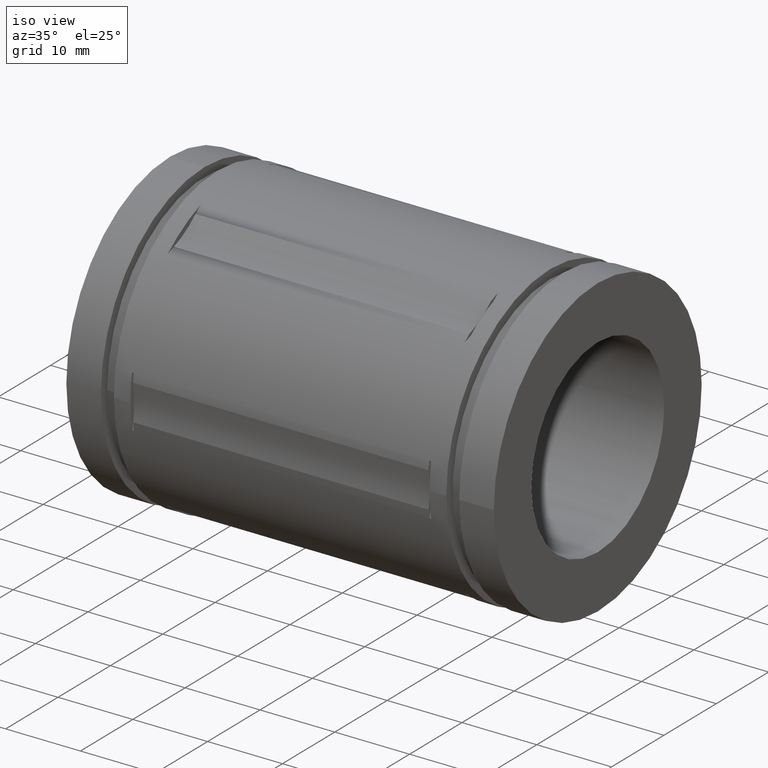
[diagram: clean part render]
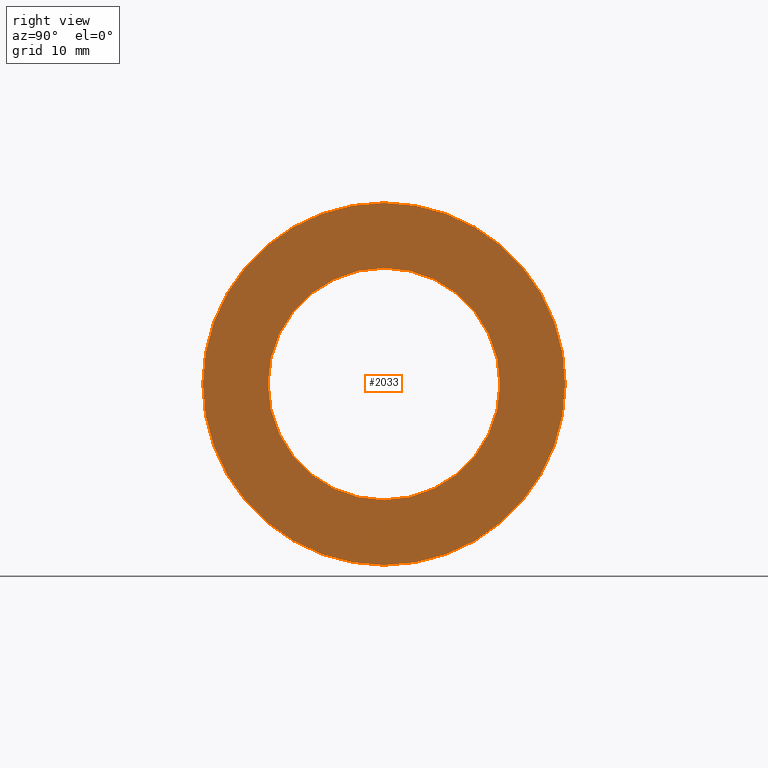
[diagram: tour spotlight — one face highlighted and labeled with its STEP entity id]
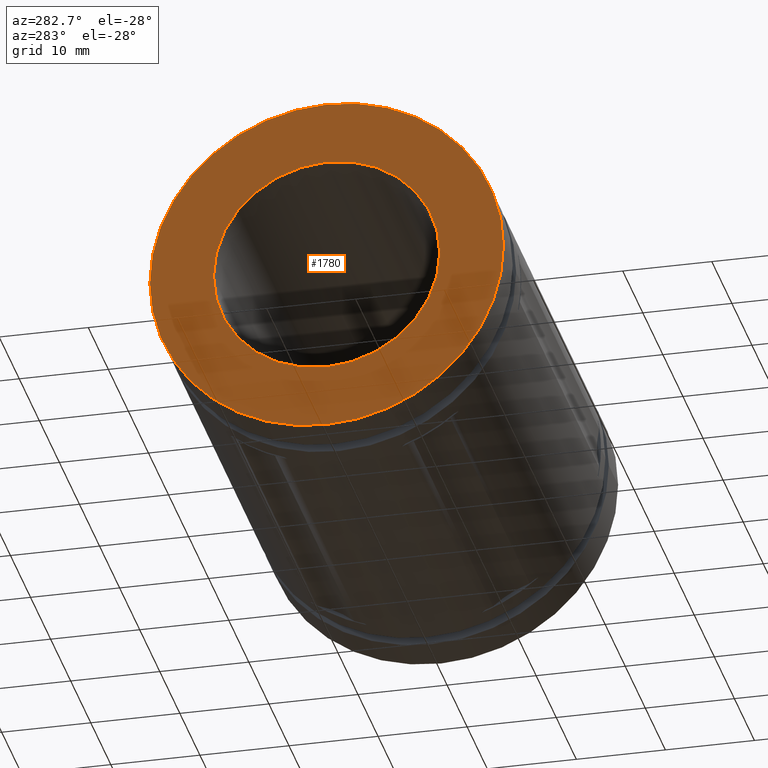
[diagram: tour spotlight — one face highlighted and labeled with its STEP entity id]
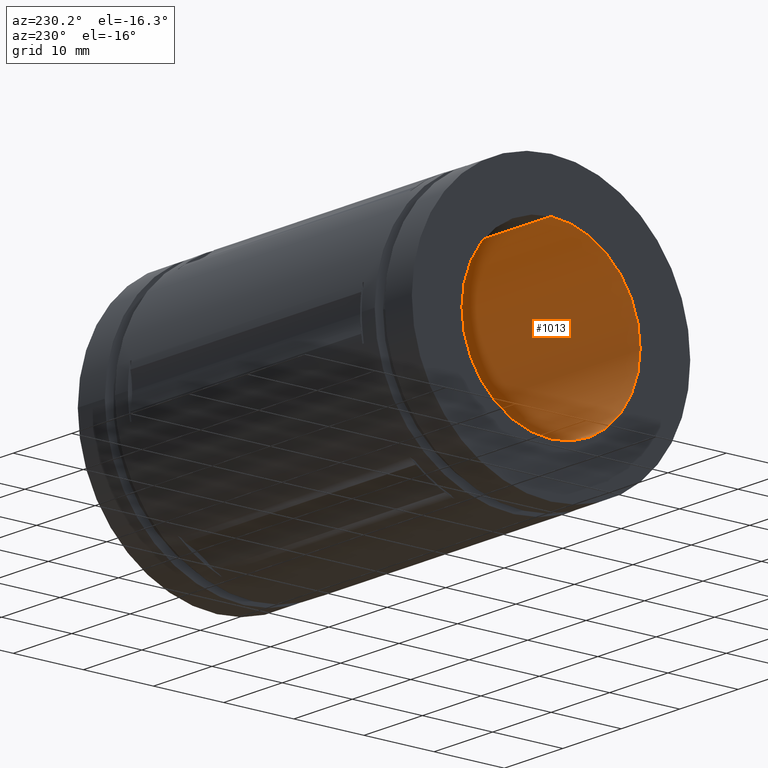
[diagram: tour spotlight — one face highlighted and labeled with its STEP entity id]
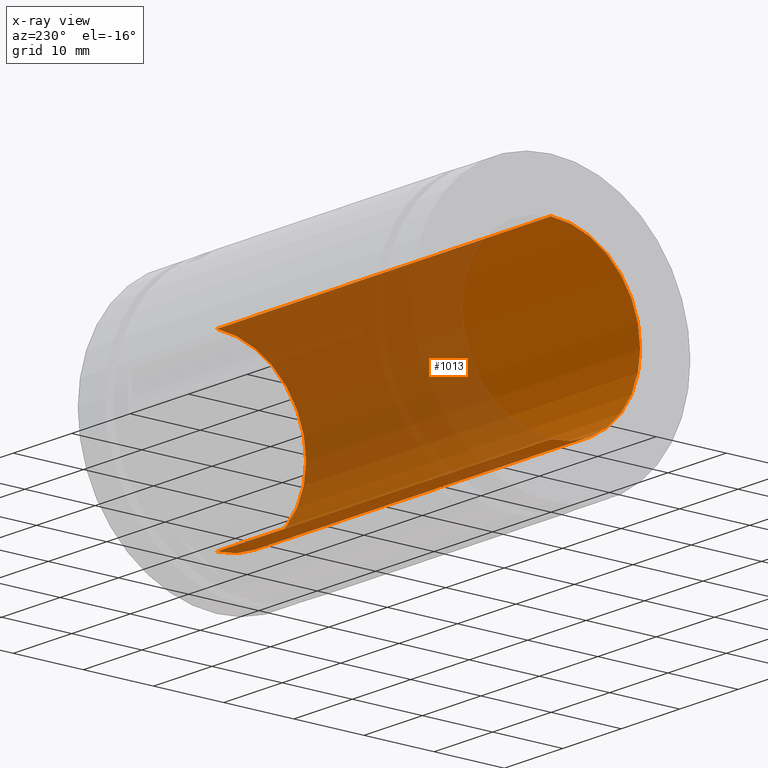
[diagram: x-ray of the same camera — body ghosted, this tour face saturated]
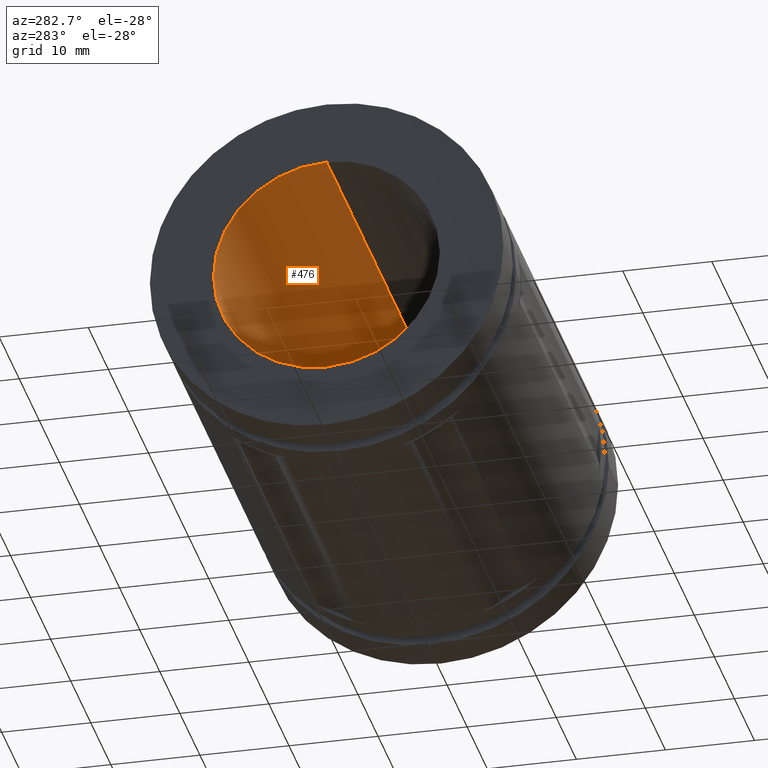
[diagram: tour spotlight — one face highlighted and labeled with its STEP entity id]
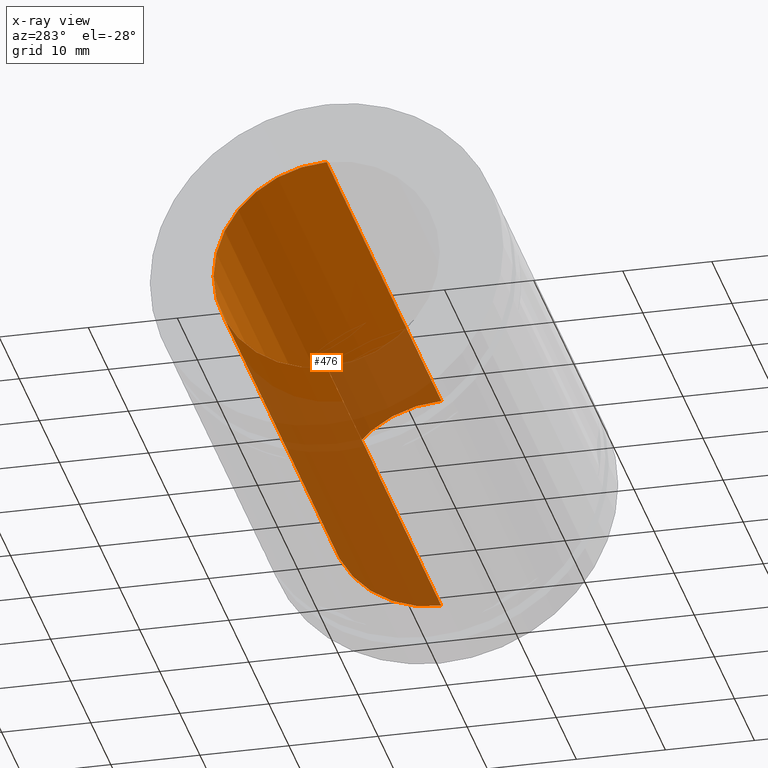
[diagram: x-ray of the same camera — body ghosted, this tour face saturated]
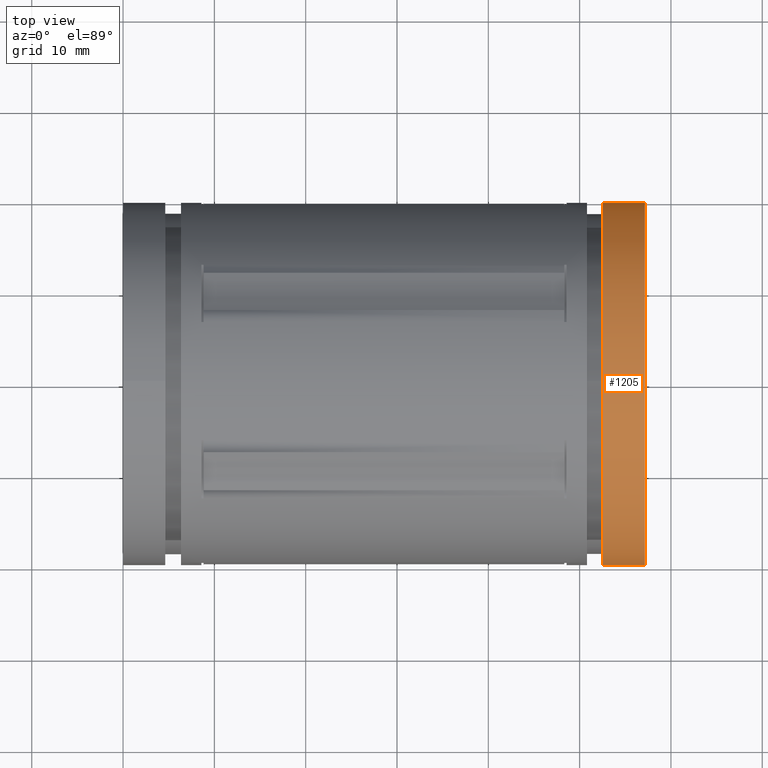
[diagram: tour spotlight — one face highlighted and labeled with its STEP entity id]
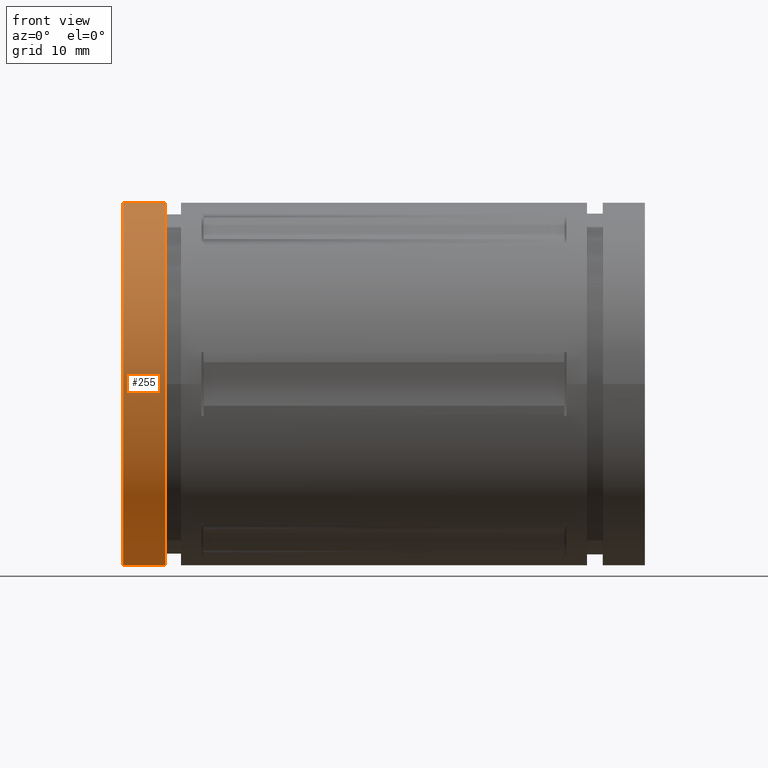
[diagram: tour spotlight — one face highlighted and labeled with its STEP entity id]
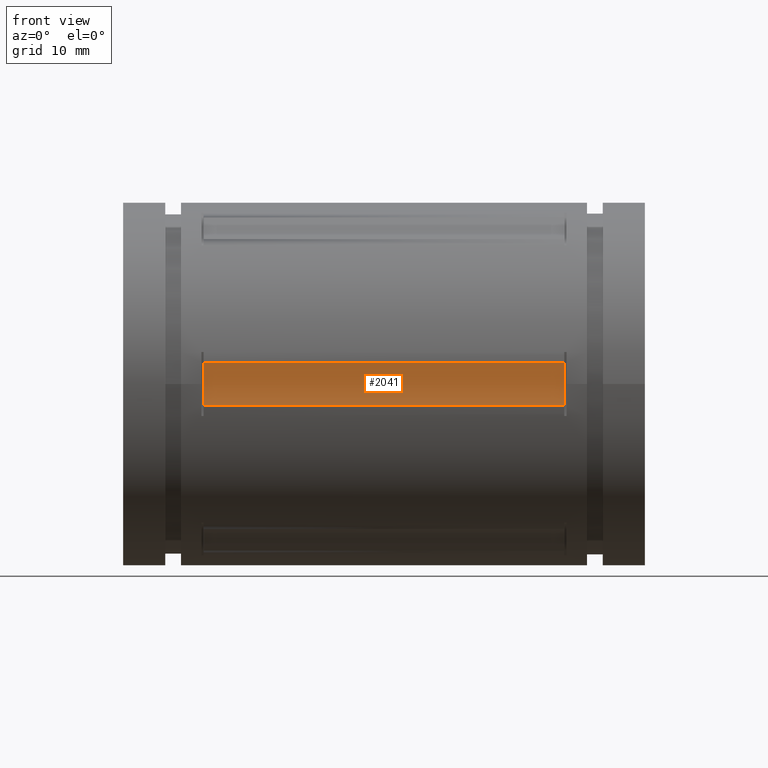
[diagram: tour spotlight — one face highlighted and labeled with its STEP entity id]
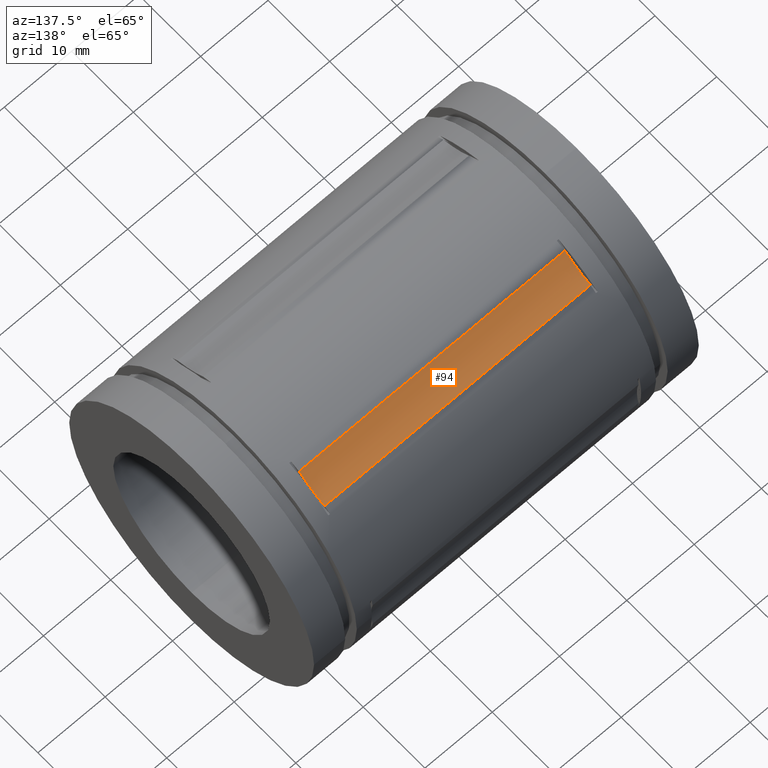
[diagram: tour spotlight — one face highlighted and labeled with its STEP entity id]
A machine part: a face-by-face anatomy tour. The part has 67 B-rep faces; the first image is the clean iso view, then the 8 largest visible faces are spotlighted one at a time (largest first), each with its STEP entity span.

Face 1 — right view, entity #2033. In plain terms, the highlighted planar face has unit normal (1, -0, 0).
Definition (entity closure, byte-faithful):
#22 = AXIS2_PLACEMENT_3D ( 'NONE', #1279, #188, #1421 ) ;
#74 = EDGE_CURVE ( 'NONE', #1779, #1970, #1849, .T. ) ;
#84 = AXIS2_PLACEMENT_3D ( 'NONE', #1786, #252, #797 ) ;
#188 = DIRECTION ( 'NONE',  ( -1.000000000000000000, -0.0000000000000000000, -0.0000000000000000000 ) ) ;
#252 = DIRECTION ( 'NONE',  ( 1.000000000000000000, -0.0000000000000000000, 0.0000000000000000000 ) ) ;
#285 = CARTESIAN_POINT ( 'NONE',  ( 2.250000000000000000, 0.0000000000000000000, -0.5000000000000000000 ) ) ;
#308 = DIRECTION ( 'NONE',  ( 0.0000000000000000000, 0.0000000000000000000, -1.000000000000000000 ) ) ;
#311 = DIRECTION ( 'NONE',  ( -1.000000000000000000, -0.0000000000000000000, -0.0000000000000000000 ) ) ;
#312 = CARTESIAN_POINT ( 'NONE',  ( 2.250000000000000000, 0.0000000000000000000, 0.0000000000000000000 ) ) ;
#492 = DIRECTION ( 'NONE',  ( 1.000000000000000000, 1.748382715945128500E-016, 0.0000000000000000000 ) ) ;
#575 = FACE_OUTER_BOUND ( 'NONE', #1998, .T. ) ;
#589 = FACE_BOUND ( 'NONE', #597, .T. ) ;
#597 = EDGE_LOOP ( 'NONE', ( #2032, #1492 ) ) ;
#774 = CIRCLE ( 'NONE', #22, 0.5000000000000000000 ) ;
#797 = DIRECTION ( 'NONE',  ( 0.0000000000000000000, 0.0000000000000000000, -1.000000000000000000 ) ) ;
#849 = CIRCLE ( 'NONE', #1271, 0.7812500000000000000 ) ;
#952 = DIRECTION ( 'NONE',  ( 0.0000000000000000000, 1.000000000000000000, 0.0000000000000000000 ) ) ;
#966 = DIRECTION ( 'NONE',  ( 1.000000000000000000, 1.748382715945128500E-016, 0.0000000000000000000 ) ) ;
#972 = CARTESIAN_POINT ( 'NONE',  ( 2.250000000000000400, 2.388157907355987400E-032, 0.0000000000000000000 ) ) ;
#1108 = AXIS2_PLACEMENT_3D ( 'NONE', #312, #311, #308 ) ;
#1121 = ORIENTED_EDGE ( 'NONE', *, *, #1892, .T. ) ;
#1182 = CIRCLE ( 'NONE', #1108, 0.5000000000000000000 ) ;
#1271 = AXIS2_PLACEMENT_3D ( 'NONE', #1558, #492, #1696 ) ;
#1279 = CARTESIAN_POINT ( 'NONE',  ( 2.250000000000000000, 0.0000000000000000000, 0.0000000000000000000 ) ) ;
#1337 = PLANE ( 'NONE',  #84 ) ;
#1387 = AXIS2_PLACEMENT_3D ( 'NONE', #972, #966, #952 ) ;
#1421 = DIRECTION ( 'NONE',  ( 0.0000000000000000000, 0.0000000000000000000, -1.000000000000000000 ) ) ;
#1466 = EDGE_CURVE ( 'NONE', #1510, #1899, #1182, .T. ) ;
#1492 = ORIENTED_EDGE ( 'NONE', *, *, #1940, .T. ) ;
#1510 = VERTEX_POINT ( 'NONE', #285 ) ;
#1558 = CARTESIAN_POINT ( 'NONE',  ( 2.250000000000000400, 2.388157907355987400E-032, 0.0000000000000000000 ) ) ;
#1696 = DIRECTION ( 'NONE',  ( 0.0000000000000000000, 1.000000000000000000, 0.0000000000000000000 ) ) ;
#1750 = ORIENTED_EDGE ( 'NONE', *, *, #74, .T. ) ;
#1779 = VERTEX_POINT ( 'NONE', #1792 ) ;
#1786 = CARTESIAN_POINT ( 'NONE',  ( 2.250000000000000000, -0.7906250000000012400, 0.7906250000000001300 ) ) ;
#1792 = CARTESIAN_POINT ( 'NONE',  ( 2.250000000000000400, 0.7812500000000000000, 0.0000000000000000000 ) ) ;
#1843 = CARTESIAN_POINT ( 'NONE',  ( 2.250000000000000000, 6.123233995736766000E-017, 0.5000000000000000000 ) ) ;
#1849 = CIRCLE ( 'NONE', #1387, 0.7812500000000000000 ) ;
#1874 = CARTESIAN_POINT ( 'NONE',  ( 2.250000000000000400, -0.7812500000000000000, 9.567553118338697000E-017 ) ) ;
#1892 = EDGE_CURVE ( 'NONE', #1970, #1779, #849, .T. ) ;
#1899 = VERTEX_POINT ( 'NONE', #1843 ) ;
#1940 = EDGE_CURVE ( 'NONE', #1899, #1510, #774, .T. ) ;
#1970 = VERTEX_POINT ( 'NONE', #1874 ) ;
#1998 = EDGE_LOOP ( 'NONE', ( #1750, #1121 ) ) ;
#2032 = ORIENTED_EDGE ( 'NONE', *, *, #1466, .T. ) ;
#2033 = ADVANCED_FACE ( 'NONE', ( #575, #589 ), #1337, .T. ) ;

Face 2 — auxiliary view, entity #1780. In plain terms, the highlighted planar face has unit normal (-1, 0, 0).
Definition (entity closure, byte-faithful):
#27 = CARTESIAN_POINT ( 'NONE',  ( 0.0000000000000000000, 6.123233995736766000E-017, 0.5000000000000000000 ) ) ;
#78 = ORIENTED_EDGE ( 'NONE', *, *, #1077, .T. ) ;
#331 = CARTESIAN_POINT ( 'NONE',  ( 0.0000000000000000000, 9.567553118338697000E-017, 0.7812500000000000000 ) ) ;
#351 = EDGE_CURVE ( 'NONE', #1695, #783, #1685, .T. ) ;
#435 = DIRECTION ( 'NONE',  ( -1.000000000000000000, 0.0000000000000000000, 0.0000000000000000000 ) ) ;
#436 = EDGE_LOOP ( 'NONE', ( #659, #1586 ) ) ;
#659 = ORIENTED_EDGE ( 'NONE', *, *, #677, .T. ) ;
#677 = EDGE_CURVE ( 'NONE', #783, #1695, #1527, .T. ) ;
#695 = DIRECTION ( 'NONE',  ( 0.0000000000000000000, 0.0000000000000000000, -1.000000000000000000 ) ) ;
#704 = DIRECTION ( 'NONE',  ( -1.000000000000000000, -0.0000000000000000000, -0.0000000000000000000 ) ) ;
#707 = CARTESIAN_POINT ( 'NONE',  ( 0.0000000000000000000, 0.0000000000000000000, 0.0000000000000000000 ) ) ;
#749 = EDGE_CURVE ( 'NONE', #1986, #1455, #1486, .T. ) ;
#783 = VERTEX_POINT ( 'NONE', #1080 ) ;
#844 = ORIENTED_EDGE ( 'NONE', *, *, #749, .T. ) ;
#881 = FACE_BOUND ( 'NONE', #436, .T. ) ;
#884 = FACE_OUTER_BOUND ( 'NONE', #2017, .T. ) ;
#1069 = AXIS2_PLACEMENT_3D ( 'NONE', #1160, #1158, #1155 ) ;
#1077 = EDGE_CURVE ( 'NONE', #1455, #1986, #1376, .T. ) ;
#1080 = CARTESIAN_POINT ( 'NONE',  ( 0.0000000000000000000, 0.0000000000000000000, -0.5000000000000000000 ) ) ;
#1082 = DIRECTION ( 'NONE',  ( 0.0000000000000000000, 0.0000000000000000000, -1.000000000000000000 ) ) ;
#1083 = DIRECTION ( 'NONE',  ( -1.000000000000000000, -0.0000000000000000000, -0.0000000000000000000 ) ) ;
#1084 = CARTESIAN_POINT ( 'NONE',  ( 0.0000000000000000000, 0.0000000000000000000, 0.0000000000000000000 ) ) ;
#1110 = CARTESIAN_POINT ( 'NONE',  ( 0.0000000000000000000, 0.0000000000000000000, -0.7812500000000000000 ) ) ;
#1155 = DIRECTION ( 'NONE',  ( 0.0000000000000000000, 0.0000000000000000000, -1.000000000000000000 ) ) ;
#1158 = DIRECTION ( 'NONE',  ( 1.000000000000000000, 0.0000000000000000000, 0.0000000000000000000 ) ) ;
#1160 = CARTESIAN_POINT ( 'NONE',  ( 0.0000000000000000000, 0.0000000000000000000, 0.0000000000000000000 ) ) ;
#1350 = PLANE ( 'NONE',  #1795 ) ;
#1376 = CIRCLE ( 'NONE', #1611, 0.7812500000000000000 ) ;
#1455 = VERTEX_POINT ( 'NONE', #331 ) ;
#1486 = CIRCLE ( 'NONE', #1606, 0.7812500000000000000 ) ;
#1514 = CARTESIAN_POINT ( 'NONE',  ( 0.0000000000000000000, -0.7906250000000012400, -0.7906250000000001300 ) ) ;
#1527 = CIRCLE ( 'NONE', #1069, 0.5000000000000000000 ) ;
#1586 = ORIENTED_EDGE ( 'NONE', *, *, #351, .T. ) ;
#1606 = AXIS2_PLACEMENT_3D ( 'NONE', #1084, #1083, #1082 ) ;
#1611 = AXIS2_PLACEMENT_3D ( 'NONE', #707, #704, #695 ) ;
#1652 = DIRECTION ( 'NONE',  ( 0.0000000000000000000, 0.0000000000000000000, 1.000000000000000000 ) ) ;
#1685 = CIRCLE ( 'NONE', #2012, 0.5000000000000000000 ) ;
#1695 = VERTEX_POINT ( 'NONE', #27 ) ;
#1780 = ADVANCED_FACE ( 'NONE', ( #884, #881 ), #1350, .T. ) ;
#1795 = AXIS2_PLACEMENT_3D ( 'NONE', #1514, #435, #1652 ) ;
#1923 = DIRECTION ( 'NONE',  ( 0.0000000000000000000, 0.0000000000000000000, -1.000000000000000000 ) ) ;
#1926 = DIRECTION ( 'NONE',  ( 1.000000000000000000, 0.0000000000000000000, 0.0000000000000000000 ) ) ;
#1948 = CARTESIAN_POINT ( 'NONE',  ( 0.0000000000000000000, 0.0000000000000000000, 0.0000000000000000000 ) ) ;
#1986 = VERTEX_POINT ( 'NONE', #1110 ) ;
#2012 = AXIS2_PLACEMENT_3D ( 'NONE', #1948, #1926, #1923 ) ;
#2017 = EDGE_LOOP ( 'NONE', ( #844, #78 ) ) ;

Face 3 — auxiliary view, entity #1013. An x-ray twin of the same camera follows (body ghosted, this face saturated) — the face is partly hidden behind the body. In plain terms, the highlighted cylindrical surface (partial cylindrical patch) has radius 12.7 mm, axis along (1, 0, 0).
Definition (entity closure, byte-faithful):
#20 = EDGE_LOOP ( 'NONE', ( #655, #977, #1451, #761 ) ) ;
#27 = CARTESIAN_POINT ( 'NONE',  ( 0.0000000000000000000, 6.123233995736766000E-017, 0.5000000000000000000 ) ) ;
#217 = DIRECTION ( 'NONE',  ( 1.000000000000000000, 0.0000000000000000000, 0.0000000000000000000 ) ) ;
#242 = CARTESIAN_POINT ( 'NONE',  ( 0.0000000000000000000, 6.123233995736766000E-017, 0.5000000000000000000 ) ) ;
#285 = CARTESIAN_POINT ( 'NONE',  ( 2.250000000000000000, 0.0000000000000000000, -0.5000000000000000000 ) ) ;
#308 = DIRECTION ( 'NONE',  ( 0.0000000000000000000, 0.0000000000000000000, -1.000000000000000000 ) ) ;
#311 = DIRECTION ( 'NONE',  ( -1.000000000000000000, -0.0000000000000000000, -0.0000000000000000000 ) ) ;
#312 = CARTESIAN_POINT ( 'NONE',  ( 2.250000000000000000, 0.0000000000000000000, 0.0000000000000000000 ) ) ;
#351 = EDGE_CURVE ( 'NONE', #1695, #783, #1685, .T. ) ;
#523 = DIRECTION ( 'NONE',  ( 1.000000000000000000, 0.0000000000000000000, 0.0000000000000000000 ) ) ;
#551 = CARTESIAN_POINT ( 'NONE',  ( 0.0000000000000000000, 0.0000000000000000000, -0.5000000000000000000 ) ) ;
#655 = ORIENTED_EDGE ( 'NONE', *, *, #351, .F. ) ;
#761 = ORIENTED_EDGE ( 'NONE', *, *, #1277, .F. ) ;
#783 = VERTEX_POINT ( 'NONE', #1080 ) ;
#790 = CARTESIAN_POINT ( 'NONE',  ( 0.0000000000000000000, 0.0000000000000000000, 0.0000000000000000000 ) ) ;
#792 = DIRECTION ( 'NONE',  ( 1.000000000000000000, 0.0000000000000000000, 0.0000000000000000000 ) ) ;
#798 = DIRECTION ( 'NONE',  ( 0.0000000000000000000, 0.0000000000000000000, -1.000000000000000000 ) ) ;
#977 = ORIENTED_EDGE ( 'NONE', *, *, #1529, .T. ) ;
#1013 = ADVANCED_FACE ( 'NONE', ( #1403 ), #1382, .F. ) ;
#1080 = CARTESIAN_POINT ( 'NONE',  ( 0.0000000000000000000, 0.0000000000000000000, -0.5000000000000000000 ) ) ;
#1097 = VECTOR ( 'NONE', #217, 39.37007874015748100 ) ;
#1108 = AXIS2_PLACEMENT_3D ( 'NONE', #312, #311, #308 ) ;
#1122 = LINE ( 'NONE', #242, #1097 ) ;
#1182 = CIRCLE ( 'NONE', #1108, 0.5000000000000000000 ) ;
#1199 = AXIS2_PLACEMENT_3D ( 'NONE', #790, #792, #798 ) ;
#1277 = EDGE_CURVE ( 'NONE', #783, #1510, #1291, .T. ) ;
#1284 = VECTOR ( 'NONE', #523, 39.37007874015748100 ) ;
#1291 = LINE ( 'NONE', #551, #1284 ) ;
#1382 = CYLINDRICAL_SURFACE ( 'NONE', #1199, 0.5000000000000000000 ) ;
#1403 = FACE_OUTER_BOUND ( 'NONE', #20, .T. ) ;
#1451 = ORIENTED_EDGE ( 'NONE', *, *, #1466, .F. ) ;
#1466 = EDGE_CURVE ( 'NONE', #1510, #1899, #1182, .T. ) ;
#1510 = VERTEX_POINT ( 'NONE', #285 ) ;
#1529 = EDGE_CURVE ( 'NONE', #1695, #1899, #1122, .T. ) ;
#1685 = CIRCLE ( 'NONE', #2012, 0.5000000000000000000 ) ;
#1695 = VERTEX_POINT ( 'NONE', #27 ) ;
#1843 = CARTESIAN_POINT ( 'NONE',  ( 2.250000000000000000, 6.123233995736766000E-017, 0.5000000000000000000 ) ) ;
#1899 = VERTEX_POINT ( 'NONE', #1843 ) ;
#1923 = DIRECTION ( 'NONE',  ( 0.0000000000000000000, 0.0000000000000000000, -1.000000000000000000 ) ) ;
#1926 = DIRECTION ( 'NONE',  ( 1.000000000000000000, 0.0000000000000000000, 0.0000000000000000000 ) ) ;
#1948 = CARTESIAN_POINT ( 'NONE',  ( 0.0000000000000000000, 0.0000000000000000000, 0.0000000000000000000 ) ) ;
#2012 = AXIS2_PLACEMENT_3D ( 'NONE', #1948, #1926, #1923 ) ;

Face 4 — auxiliary view, entity #476. An x-ray twin of the same camera follows (body ghosted, this face saturated) — the face is partly hidden behind the body. In plain terms, the highlighted cylindrical surface (partial cylindrical patch) has radius 12.7 mm, axis along (1, 0, 0).
Definition (entity closure, byte-faithful):
#22 = AXIS2_PLACEMENT_3D ( 'NONE', #1279, #188, #1421 ) ;
#27 = CARTESIAN_POINT ( 'NONE',  ( 0.0000000000000000000, 6.123233995736766000E-017, 0.5000000000000000000 ) ) ;
#188 = DIRECTION ( 'NONE',  ( -1.000000000000000000, -0.0000000000000000000, -0.0000000000000000000 ) ) ;
#209 = ORIENTED_EDGE ( 'NONE', *, *, #1529, .F. ) ;
#217 = DIRECTION ( 'NONE',  ( 1.000000000000000000, 0.0000000000000000000, 0.0000000000000000000 ) ) ;
#242 = CARTESIAN_POINT ( 'NONE',  ( 0.0000000000000000000, 6.123233995736766000E-017, 0.5000000000000000000 ) ) ;
#285 = CARTESIAN_POINT ( 'NONE',  ( 2.250000000000000000, 0.0000000000000000000, -0.5000000000000000000 ) ) ;
#361 = ORIENTED_EDGE ( 'NONE', *, *, #1940, .F. ) ;
#432 = EDGE_LOOP ( 'NONE', ( #209, #1321, #1691, #361 ) ) ;
#476 = ADVANCED_FACE ( 'NONE', ( #1598 ), #1591, .F. ) ;
#523 = DIRECTION ( 'NONE',  ( 1.000000000000000000, 0.0000000000000000000, 0.0000000000000000000 ) ) ;
#551 = CARTESIAN_POINT ( 'NONE',  ( 0.0000000000000000000, 0.0000000000000000000, -0.5000000000000000000 ) ) ;
#591 = DIRECTION ( 'NONE',  ( 0.0000000000000000000, 0.0000000000000000000, -1.000000000000000000 ) ) ;
#677 = EDGE_CURVE ( 'NONE', #783, #1695, #1527, .T. ) ;
#774 = CIRCLE ( 'NONE', #22, 0.5000000000000000000 ) ;
#783 = VERTEX_POINT ( 'NONE', #1080 ) ;
#1069 = AXIS2_PLACEMENT_3D ( 'NONE', #1160, #1158, #1155 ) ;
#1080 = CARTESIAN_POINT ( 'NONE',  ( 0.0000000000000000000, 0.0000000000000000000, -0.5000000000000000000 ) ) ;
#1097 = VECTOR ( 'NONE', #217, 39.37007874015748100 ) ;
#1122 = LINE ( 'NONE', #242, #1097 ) ;
#1155 = DIRECTION ( 'NONE',  ( 0.0000000000000000000, 0.0000000000000000000, -1.000000000000000000 ) ) ;
#1158 = DIRECTION ( 'NONE',  ( 1.000000000000000000, 0.0000000000000000000, 0.0000000000000000000 ) ) ;
#1160 = CARTESIAN_POINT ( 'NONE',  ( 0.0000000000000000000, 0.0000000000000000000, 0.0000000000000000000 ) ) ;
#1277 = EDGE_CURVE ( 'NONE', #783, #1510, #1291, .T. ) ;
#1279 = CARTESIAN_POINT ( 'NONE',  ( 2.250000000000000000, 0.0000000000000000000, 0.0000000000000000000 ) ) ;
#1284 = VECTOR ( 'NONE', #523, 39.37007874015748100 ) ;
#1291 = LINE ( 'NONE', #551, #1284 ) ;
#1321 = ORIENTED_EDGE ( 'NONE', *, *, #677, .F. ) ;
#1421 = DIRECTION ( 'NONE',  ( 0.0000000000000000000, 0.0000000000000000000, -1.000000000000000000 ) ) ;
#1510 = VERTEX_POINT ( 'NONE', #285 ) ;
#1527 = CIRCLE ( 'NONE', #1069, 0.5000000000000000000 ) ;
#1529 = EDGE_CURVE ( 'NONE', #1695, #1899, #1122, .T. ) ;
#1570 = CARTESIAN_POINT ( 'NONE',  ( 0.0000000000000000000, 0.0000000000000000000, 0.0000000000000000000 ) ) ;
#1588 = DIRECTION ( 'NONE',  ( 1.000000000000000000, 0.0000000000000000000, 0.0000000000000000000 ) ) ;
#1591 = CYLINDRICAL_SURFACE ( 'NONE', #1741, 0.5000000000000000000 ) ;
#1598 = FACE_OUTER_BOUND ( 'NONE', #432, .T. ) ;
#1691 = ORIENTED_EDGE ( 'NONE', *, *, #1277, .T. ) ;
#1695 = VERTEX_POINT ( 'NONE', #27 ) ;
#1741 = AXIS2_PLACEMENT_3D ( 'NONE', #1570, #1588, #591 ) ;
#1843 = CARTESIAN_POINT ( 'NONE',  ( 2.250000000000000000, 6.123233995736766000E-017, 0.5000000000000000000 ) ) ;
#1899 = VERTEX_POINT ( 'NONE', #1843 ) ;
#1940 = EDGE_CURVE ( 'NONE', #1899, #1510, #774, .T. ) ;

Face 5 — top view, entity #1205. In plain terms, the highlighted cylindrical surface (partial cylindrical patch) has radius 19.8438 mm, axis along (1, 0, 0).
Definition (entity closure, byte-faithful):
#63 = EDGE_CURVE ( 'NONE', #144, #1396, #1847, .T. ) ;
#74 = EDGE_CURVE ( 'NONE', #1779, #1970, #1849, .T. ) ;
#144 = VERTEX_POINT ( 'NONE', #700 ) ;
#369 = CARTESIAN_POINT ( 'NONE',  ( 2.067913385826772200, -0.7812500000000000000, 9.567553118338697000E-017 ) ) ;
#412 = EDGE_CURVE ( 'NONE', #1396, #1970, #1636, .T. ) ;
#546 = ORIENTED_EDGE ( 'NONE', *, *, #63, .T. ) ;
#550 = ORIENTED_EDGE ( 'NONE', *, *, #74, .F. ) ;
#567 = EDGE_LOOP ( 'NONE', ( #546, #1801, #550, #1968 ) ) ;
#612 = DIRECTION ( 'NONE',  ( -3.496765431890257000E-016, 1.000000000000000000, 0.0000000000000000000 ) ) ;
#615 = CARTESIAN_POINT ( 'NONE',  ( 2.250000000000000000, 0.0000000000000000000, 0.0000000000000000000 ) ) ;
#619 = DIRECTION ( 'NONE',  ( 1.000000000000000000, 1.748382715945128500E-016, 0.0000000000000000000 ) ) ;
#700 = CARTESIAN_POINT ( 'NONE',  ( 2.067913385826772200, 0.7812500000000000000, 0.0000000000000000000 ) ) ;
#710 = CARTESIAN_POINT ( 'NONE',  ( 2.249999999999999600, 0.7812500000000000000, 0.0000000000000000000 ) ) ;
#712 = DIRECTION ( 'NONE',  ( 1.000000000000000000, 1.748382715945128500E-016, 0.0000000000000000000 ) ) ;
#717 = DIRECTION ( 'NONE',  ( 0.0000000000000000000, 1.000000000000000000, 0.0000000000000000000 ) ) ;
#758 = AXIS2_PLACEMENT_3D ( 'NONE', #615, #619, #612 ) ;
#952 = DIRECTION ( 'NONE',  ( 0.0000000000000000000, 1.000000000000000000, 0.0000000000000000000 ) ) ;
#966 = DIRECTION ( 'NONE',  ( 1.000000000000000000, 1.748382715945128500E-016, 0.0000000000000000000 ) ) ;
#972 = CARTESIAN_POINT ( 'NONE',  ( 2.250000000000000400, 2.388157907355987400E-032, 0.0000000000000000000 ) ) ;
#1008 = CARTESIAN_POINT ( 'NONE',  ( 2.067913385826772200, -3.183570890254403500E-017, 0.0000000000000000000 ) ) ;
#1037 = DIRECTION ( 'NONE',  ( 1.000000000000000000, 1.748382715945128500E-016, 0.0000000000000000000 ) ) ;
#1089 = EDGE_CURVE ( 'NONE', #144, #1779, #1386, .T. ) ;
#1166 = AXIS2_PLACEMENT_3D ( 'NONE', #1008, #1037, #717 ) ;
#1205 = ADVANCED_FACE ( 'NONE', ( #1324 ), #1310, .T. ) ;
#1310 = CYLINDRICAL_SURFACE ( 'NONE', #758, 0.7812500000000000000 ) ;
#1324 = FACE_OUTER_BOUND ( 'NONE', #567, .T. ) ;
#1352 = VECTOR ( 'NONE', #712, 39.37007874015748100 ) ;
#1386 = LINE ( 'NONE', #710, #1352 ) ;
#1387 = AXIS2_PLACEMENT_3D ( 'NONE', #972, #966, #952 ) ;
#1396 = VERTEX_POINT ( 'NONE', #369 ) ;
#1636 = LINE ( 'NONE', #1722, #1653 ) ;
#1653 = VECTOR ( 'NONE', #1720, 39.37007874015748100 ) ;
#1720 = DIRECTION ( 'NONE',  ( 1.000000000000000000, 1.748382715945128500E-016, 0.0000000000000000000 ) ) ;
#1722 = CARTESIAN_POINT ( 'NONE',  ( 2.250000000000000400, -0.7812500000000000000, 9.567553118338697000E-017 ) ) ;
#1779 = VERTEX_POINT ( 'NONE', #1792 ) ;
#1792 = CARTESIAN_POINT ( 'NONE',  ( 2.250000000000000400, 0.7812500000000000000, 0.0000000000000000000 ) ) ;
#1801 = ORIENTED_EDGE ( 'NONE', *, *, #412, .T. ) ;
#1847 = CIRCLE ( 'NONE', #1166, 0.7812500000000000000 ) ;
#1849 = CIRCLE ( 'NONE', #1387, 0.7812500000000000000 ) ;
#1874 = CARTESIAN_POINT ( 'NONE',  ( 2.250000000000000400, -0.7812500000000000000, 9.567553118338697000E-017 ) ) ;
#1968 = ORIENTED_EDGE ( 'NONE', *, *, #1089, .F. ) ;
#1970 = VERTEX_POINT ( 'NONE', #1874 ) ;

Face 6 — front view, entity #255. In plain terms, the highlighted cylindrical surface (partial cylindrical patch) has radius 19.8438 mm, axis along (1, 0, 0).
Definition (entity closure, byte-faithful):
#1 = CARTESIAN_POINT ( 'NONE',  ( 0.1820866141732283000, 0.0000000000000000000, -0.7812500000000000000 ) ) ;
#121 = DIRECTION ( 'NONE',  ( 0.0000000000000000000, 0.0000000000000000000, -1.000000000000000000 ) ) ;
#128 = EDGE_CURVE ( 'NONE', #1986, #2001, #424, .T. ) ;
#241 = DIRECTION ( 'NONE',  ( 1.000000000000000000, 0.0000000000000000000, 0.0000000000000000000 ) ) ;
#255 = ADVANCED_FACE ( 'NONE', ( #1744 ), #1732, .T. ) ;
#264 = CARTESIAN_POINT ( 'NONE',  ( 0.1820866141732283000, 0.0000000000000000000, 0.0000000000000000000 ) ) ;
#331 = CARTESIAN_POINT ( 'NONE',  ( 0.0000000000000000000, 9.567553118338697000E-017, 0.7812500000000000000 ) ) ;
#348 = DIRECTION ( 'NONE',  ( 0.0000000000000000000, 0.0000000000000000000, -1.000000000000000000 ) ) ;
#349 = DIRECTION ( 'NONE',  ( -1.000000000000000000, -0.0000000000000000000, -0.0000000000000000000 ) ) ;
#352 = CARTESIAN_POINT ( 'NONE',  ( 0.1820866141732282500, 0.0000000000000000000, 0.0000000000000000000 ) ) ;
#424 = LINE ( 'NONE', #1, #1823 ) ;
#532 = DIRECTION ( 'NONE',  ( 1.000000000000000000, 0.0000000000000000000, 0.0000000000000000000 ) ) ;
#534 = CARTESIAN_POINT ( 'NONE',  ( 0.1820866141732283000, 9.567553118338697000E-017, 0.7812500000000000000 ) ) ;
#581 = AXIS2_PLACEMENT_3D ( 'NONE', #352, #349, #348 ) ;
#749 = EDGE_CURVE ( 'NONE', #1986, #1455, #1486, .T. ) ;
#771 = CARTESIAN_POINT ( 'NONE',  ( 0.1820866141732282500, 0.0000000000000000000, -0.7812500000000000000 ) ) ;
#787 = VERTEX_POINT ( 'NONE', #1093 ) ;
#845 = DIRECTION ( 'NONE',  ( 1.000000000000000000, 0.0000000000000000000, 0.0000000000000000000 ) ) ;
#1082 = DIRECTION ( 'NONE',  ( 0.0000000000000000000, 0.0000000000000000000, -1.000000000000000000 ) ) ;
#1083 = DIRECTION ( 'NONE',  ( -1.000000000000000000, -0.0000000000000000000, -0.0000000000000000000 ) ) ;
#1084 = CARTESIAN_POINT ( 'NONE',  ( 0.0000000000000000000, 0.0000000000000000000, 0.0000000000000000000 ) ) ;
#1093 = CARTESIAN_POINT ( 'NONE',  ( 0.1820866141732282500, 9.567553118338697000E-017, 0.7812500000000000000 ) ) ;
#1110 = CARTESIAN_POINT ( 'NONE',  ( 0.0000000000000000000, 0.0000000000000000000, -0.7812500000000000000 ) ) ;
#1134 = EDGE_LOOP ( 'NONE', ( #1914, #1735, #1153, #1931 ) ) ;
#1153 = ORIENTED_EDGE ( 'NONE', *, *, #128, .T. ) ;
#1212 = CIRCLE ( 'NONE', #581, 0.7812500000000000000 ) ;
#1252 = AXIS2_PLACEMENT_3D ( 'NONE', #264, #241, #121 ) ;
#1275 = EDGE_CURVE ( 'NONE', #1455, #787, #1303, .T. ) ;
#1289 = VECTOR ( 'NONE', #532, 39.37007874015748100 ) ;
#1303 = LINE ( 'NONE', #534, #1289 ) ;
#1419 = EDGE_CURVE ( 'NONE', #2001, #787, #1212, .T. ) ;
#1455 = VERTEX_POINT ( 'NONE', #331 ) ;
#1486 = CIRCLE ( 'NONE', #1606, 0.7812500000000000000 ) ;
#1606 = AXIS2_PLACEMENT_3D ( 'NONE', #1084, #1083, #1082 ) ;
#1732 = CYLINDRICAL_SURFACE ( 'NONE', #1252, 0.7812500000000000000 ) ;
#1735 = ORIENTED_EDGE ( 'NONE', *, *, #749, .F. ) ;
#1744 = FACE_OUTER_BOUND ( 'NONE', #1134, .T. ) ;
#1823 = VECTOR ( 'NONE', #845, 39.37007874015748100 ) ;
#1914 = ORIENTED_EDGE ( 'NONE', *, *, #1275, .F. ) ;
#1931 = ORIENTED_EDGE ( 'NONE', *, *, #1419, .T. ) ;
#1986 = VERTEX_POINT ( 'NONE', #1110 ) ;
#2001 = VERTEX_POINT ( 'NONE', #771 ) ;

Face 7 — front view, entity #2041. In plain terms, the highlighted cylindrical surface (partial cylindrical patch) has radius 11.4938 mm, axis along (-1, -0, -0).
Definition (entity closure, byte-faithful):
#119 = CARTESIAN_POINT ( 'NONE',  ( 0.3476377952755944100, -0.7755905511811024300, -0.09386617824644807900 ) ) ;
#152 = CARTESIAN_POINT ( 'NONE',  ( 0.3476377952755945700, -1.218260949803146700, 0.0000000000000000000 ) ) ;
#193 = EDGE_CURVE ( 'NONE', #689, #702, #1772, .T. ) ;
#309 = DIRECTION ( 'NONE',  ( 3.018530392330569100E-016, -1.000000000000000000, 3.552713678800500100E-015 ) ) ;
#336 = CARTESIAN_POINT ( 'NONE',  ( 0.3476377952755967400, -0.7755905511811024300, 0.09386617824644870300 ) ) ;
#355 = EDGE_CURVE ( 'NONE', #1459, #689, #1681, .T. ) ;
#365 = AXIS2_PLACEMENT_3D ( 'NONE', #509, #501, #496 ) ;
#420 = EDGE_CURVE ( 'NONE', #702, #2053, #1629, .T. ) ;
#493 = CIRCLE ( 'NONE', #1010, 0.4525129183070835100 ) ;
#496 = DIRECTION ( 'NONE',  ( 0.0000000000000000000, -1.000000000000000000, 0.0000000000000000000 ) ) ;
#501 = DIRECTION ( 'NONE',  ( -1.000000000000000000, -3.018530392330569600E-016, -0.0000000000000000000 ) ) ;
#509 = CARTESIAN_POINT ( 'NONE',  ( 1.902362204724409500, -1.218260949803146300, 0.0000000000000000000 ) ) ;
#533 = AXIS2_PLACEMENT_3D ( 'NONE', #804, #1006, #1799 ) ;
#545 = CYLINDRICAL_SURFACE ( 'NONE', #533, 0.4525129183070834000 ) ;
#569 = FACE_OUTER_BOUND ( 'NONE', #1245, .T. ) ;
#627 = ORIENTED_EDGE ( 'NONE', *, *, #193, .F. ) ;
#689 = VERTEX_POINT ( 'NONE', #1170 ) ;
#702 = VERTEX_POINT ( 'NONE', #1167 ) ;
#804 = CARTESIAN_POINT ( 'NONE',  ( 1.902362204724409500, -1.218260949803146300, 0.0000000000000000000 ) ) ;
#974 = ORIENTED_EDGE ( 'NONE', *, *, #420, .F. ) ;
#1006 = DIRECTION ( 'NONE',  ( -1.000000000000000000, -3.018530392330569600E-016, -0.0000000000000000000 ) ) ;
#1010 = AXIS2_PLACEMENT_3D ( 'NONE', #152, #1392, #309 ) ;
#1167 = CARTESIAN_POINT ( 'NONE',  ( 1.902362204724409500, -0.7755905511811022100, -0.09386617824644841200 ) ) ;
#1170 = CARTESIAN_POINT ( 'NONE',  ( 1.902362204724409500, -0.7755905511811022100, 0.09386617824644902200 ) ) ;
#1245 = EDGE_LOOP ( 'NONE', ( #627, #1975, #1848, #974 ) ) ;
#1392 = DIRECTION ( 'NONE',  ( 1.000000000000000000, 3.018530392330569600E-016, 0.0000000000000000000 ) ) ;
#1459 = VERTEX_POINT ( 'NONE', #336 ) ;
#1629 = LINE ( 'NONE', #1663, #1648 ) ;
#1648 = VECTOR ( 'NONE', #1651, 39.37007874015748100 ) ;
#1651 = DIRECTION ( 'NONE',  ( -1.000000000000000000, -1.748382715945128500E-016, -0.0000000000000000000 ) ) ;
#1659 = VECTOR ( 'NONE', #1887, 39.37007874015748100 ) ;
#1663 = CARTESIAN_POINT ( 'NONE',  ( 2.000011811023622200, -0.7755905511811022100, -0.09386617824644900900 ) ) ;
#1681 = LINE ( 'NONE', #1893, #1659 ) ;
#1772 = CIRCLE ( 'NONE', #365, 0.4525129183070834000 ) ;
#1799 = DIRECTION ( 'NONE',  ( 0.0000000000000000000, -1.000000000000000000, 0.0000000000000000000 ) ) ;
#1848 = ORIENTED_EDGE ( 'NONE', *, *, #1860, .F. ) ;
#1860 = EDGE_CURVE ( 'NONE', #2053, #1459, #493, .T. ) ;
#1887 = DIRECTION ( 'NONE',  ( 1.000000000000000000, 1.748382715945128500E-016, 0.0000000000000000000 ) ) ;
#1893 = CARTESIAN_POINT ( 'NONE',  ( 2.000011811023622200, -0.7755905511811020900, 0.09386617824645023000 ) ) ;
#1975 = ORIENTED_EDGE ( 'NONE', *, *, #355, .F. ) ;
#2041 = ADVANCED_FACE ( 'NONE', ( #569 ), #545, .F. ) ;
#2053 = VERTEX_POINT ( 'NONE', #119 ) ;

Face 8 — auxiliary view, entity #94. In plain terms, the highlighted cylindrical surface (partial cylindrical patch) has radius 11.4938 mm, axis along (-1, -0, -0).
Definition (entity closure, byte-faithful):
#94 = ADVANCED_FACE ( 'NONE', ( #1844 ), #1817, .F. ) ;
#110 = CARTESIAN_POINT ( 'NONE',  ( 1.902362204724409500, 0.3065047806729686600, 0.7186142093812335500 ) ) ;
#158 = ORIENTED_EDGE ( 'NONE', *, *, #1323, .F. ) ;
#235 = CARTESIAN_POINT ( 'NONE',  ( 0.3476377952755945700, 0.4690857705081332200, 0.6247480311347852800 ) ) ;
#258 = VERTEX_POINT ( 'NONE', #235 ) ;
#282 = VERTEX_POINT ( 'NONE', #110 ) ;
#286 = ORIENTED_EDGE ( 'NONE', *, *, #1913, .F. ) ;
#462 = EDGE_CURVE ( 'NONE', #1740, #258, #1614, .T. ) ;
#463 = LINE ( 'NONE', #502, #814 ) ;
#471 = EDGE_LOOP ( 'NONE', ( #158, #1334, #1616, #286 ) ) ;
#487 = DIRECTION ( 'NONE',  ( 0.0000000000000000000, -1.000000000000000000, 0.0000000000000000000 ) ) ;
#489 = DIRECTION ( 'NONE',  ( -1.000000000000000000, -3.018530392330499100E-016, -0.0000000000000000000 ) ) ;
#491 = CARTESIAN_POINT ( 'NONE',  ( 1.902362204724409500, 0.6091304749015783400, 1.055044930968092300 ) ) ;
#502 = CARTESIAN_POINT ( 'NONE',  ( 2.000011811023622200, 0.3065047806729694300, 0.7186142093812332200 ) ) ;
#553 = EDGE_CURVE ( 'NONE', #258, #675, #1592, .T. ) ;
#675 = VERTEX_POINT ( 'NONE', #1185 ) ;
#814 = VECTOR ( 'NONE', #1701, 39.37007874015748100 ) ;
#912 = DIRECTION ( 'NONE',  ( -1.000000000000000000, -3.018530392330499100E-016, -0.0000000000000000000 ) ) ;
#965 = CARTESIAN_POINT ( 'NONE',  ( 1.902362204724409500, 0.6091304749015783400, 1.055044930968092300 ) ) ;
#1073 = DIRECTION ( 'NONE',  ( 0.0000000000000000000, -1.000000000000000000, 0.0000000000000000000 ) ) ;
#1185 = CARTESIAN_POINT ( 'NONE',  ( 1.902362204724409500, 0.4690857705081331600, 0.6247480311347855000 ) ) ;
#1259 = CARTESIAN_POINT ( 'NONE',  ( 0.3476377952755945700, 0.3065047806729679400, 0.7186142093812337700 ) ) ;
#1270 = CIRCLE ( 'NONE', #1371, 0.4525129183070940600 ) ;
#1323 = EDGE_CURVE ( 'NONE', #675, #282, #1270, .T. ) ;
#1332 = AXIS2_PLACEMENT_3D ( 'NONE', #1523, #1516, #1515 ) ;
#1334 = ORIENTED_EDGE ( 'NONE', *, *, #553, .F. ) ;
#1371 = AXIS2_PLACEMENT_3D ( 'NONE', #491, #489, #487 ) ;
#1413 = DIRECTION ( 'NONE',  ( 1.000000000000000000, 1.748382715945128500E-016, 0.0000000000000000000 ) ) ;
#1418 = CARTESIAN_POINT ( 'NONE',  ( 2.000011811023622200, 0.4690857705081319900, 0.6247480311347865000 ) ) ;
#1515 = DIRECTION ( 'NONE',  ( 3.018530392330498600E-016, -1.000000000000000000, 0.0000000000000000000 ) ) ;
#1516 = DIRECTION ( 'NONE',  ( 1.000000000000000000, 3.018530392330499100E-016, 0.0000000000000000000 ) ) ;
#1523 = CARTESIAN_POINT ( 'NONE',  ( 0.3476377952755945700, 0.6091304749015779000, 1.055044930968092300 ) ) ;
#1580 = VECTOR ( 'NONE', #1413, 39.37007874015748100 ) ;
#1592 = LINE ( 'NONE', #1418, #1580 ) ;
#1614 = CIRCLE ( 'NONE', #1332, 0.4525129183070940600 ) ;
#1616 = ORIENTED_EDGE ( 'NONE', *, *, #462, .F. ) ;
#1684 = AXIS2_PLACEMENT_3D ( 'NONE', #965, #912, #1073 ) ;
#1701 = DIRECTION ( 'NONE',  ( -1.000000000000000000, -1.748382715945128500E-016, -0.0000000000000000000 ) ) ;
#1740 = VERTEX_POINT ( 'NONE', #1259 ) ;
#1817 = CYLINDRICAL_SURFACE ( 'NONE', #1684, 0.4525129183070940600 ) ;
#1844 = FACE_OUTER_BOUND ( 'NONE', #471, .T. ) ;
#1913 = EDGE_CURVE ( 'NONE', #282, #1740, #463, .T. ) ;